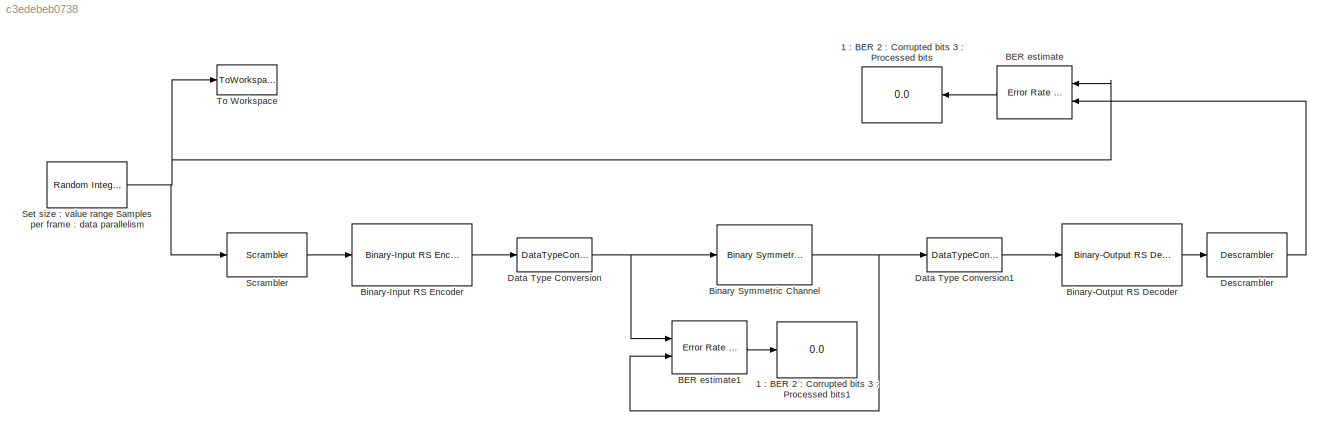
MODEL slx_c3edebeb0738
KIND model
CONFIG AbsTol = auto
CONFIG EnableMultiTasking = off
CONFIG FixedStep = auto
CONFIG MaxStep = auto
CONFIG MinStep = auto
CONFIG RelTol = 1e-3
CONFIG SampleTimeConstraint = Unconstrained
CONFIG Solver = FixedStepAuto
CONFIG SolverName = FixedStepAuto
CONFIG StartTime = 0
CONFIG StopTime = 100e-3
WORKSPACE source: mxarray member
WORKSPACE ITV_I = 12
WORKSPACE ITV_M = 17
WORKSPACE M = 4
WORKSPACE RS_k = 188
WORKSPACE RS_m = 8
WORKSPACE RS_n = 204
WORKSPACE RS_prim_poly = 'X^8+X^4+X^3+X^2+1'
WORKSPACE Rb = 1000
WORKSPACE SCR_init = [1 0 0 1 0 1 0 1 0 0 0 0 ... (15 elements, 1x15)]
WORKSPACE SCR_poly = '1+z^-14+z^-15'
WORKSPACE beta = 0.3
WORKSPACE osf = 16
WORKSPACE span = 12
BLOCK [Display] 1 : BER 2 : Corrupted bits 3 : Processed bits
  Decimation = 1
  Ports = [1]
BLOCK [Display] 1 : BER 2 : Corrupted bits 3 : Processed bits1
  Decimation = 1
  Ports = [1]
BLOCK [Reference] BER estimate  REF=commsink2/Error Rate
Calculation
  Ports = [2, 1]
  SourceBlock = commsink2/Error Rate\nCalculation
  SourceProductBaseCode = CM
  SourceProductName = Communications Toolbox
  SourceType = Error Rate Calculation
BLOCK [Reference] BER estimate1  REF=commsink2/Error Rate
Calculation
  Ports = [2, 1]
  SourceBlock = commsink2/Error Rate\nCalculation
  SourceProductBaseCode = CM
  SourceProductName = Communications Toolbox
  SourceType = Error Rate Calculation
BLOCK [Reference] Binary Symmetric Channel  REF=commchan3/Binary Symmetric
Channel
  Ports = [1, 1]
  SourceBlock = commchan3/Binary Symmetric\nChannel
  SourceProductBaseCode = CM
  SourceProductName = Communications Toolbox
  SourceType = Binary Symmetric Channel
BLOCK [Reference] Binary-Input RS Encoder  REF=commblkcod2/Binary-Input
RS Encoder
  Ports = [1, 1]
  SourceBlock = commblkcod2/Binary-Input\nRS Encoder
  SourceProductBaseCode = CM
  SourceProductName = Communications Toolbox
  SourceType = Binary-Input RS Encoder
BLOCK [Reference] Binary-Output RS Decoder  REF=commblkcod2/Binary-Output
RS Decoder
  Ports = [1, 1]
  SourceBlock = commblkcod2/Binary-Output\nRS Decoder
  SourceProductBaseCode = CM
  SourceProductName = Communications Toolbox
  SourceType = Binary-Output RS Decoder
BLOCK [DataTypeConversion] Data Type Conversion
  OutDataTypeStr = double
  RndMeth = Floor
  SaturateOnIntegerOverflow = off
BLOCK [DataTypeConversion] Data Type Conversion1
  OutDataTypeStr = uint8
  RndMeth = Floor
  SaturateOnIntegerOverflow = off
BLOCK [Reference] Descrambler  REF=commsequence2/Descrambler
  Ports = [1, 1]
  SourceBlock = commsequence2/Descrambler
  SourceProductBaseCode = CM
  SourceProductName = Communications Toolbox
  SourceType = Descrambler
BLOCK [Reference] Scrambler  REF=commsequence2/Scrambler
  Ports = [1, 1]
  SourceBlock = commsequence2/Scrambler
  SourceProductBaseCode = CM
  SourceProductName = Communications Toolbox
  SourceType = Scrambler
BLOCK [Reference] Set size : value range Samples per frame : data parallelism  REF=commrandsrc3/Random Integer
Generator
  Ports = [0, 1]
  SourceBlock = commrandsrc3/Random Integer\nGenerator
  SourceProductBaseCode = CM
  SourceProductName = Communications Toolbox
  SourceType = Random Integer Generator
BLOCK [ToWorkspace] To Workspace
  FixptAsFi = on
  MaxDataPoints = inf
  Ports = [1]
  SampleTime = -1
  SaveFormat = Timeseries
  VariableName = InBits
LINE BER estimate1:1 -> 1 : BER 2 : Corrupted bits 3 : Processed bits1:1
LINE BER estimate:1 -> 1 : BER 2 : Corrupted bits 3 : Processed bits:1
NET Binary Symmetric Channel:1 -> BER estimate1:2, Data Type Conversion1:1
LINE Binary-Input RS Encoder:1 -> Data Type Conversion:1
LINE Binary-Output RS Decoder:1 -> Descrambler:1
LINE Data Type Conversion1:1 -> Binary-Output RS Decoder:1
NET Data Type Conversion:1 -> BER estimate1:1, Binary Symmetric Channel:1
LINE Descrambler:1 -> BER estimate:2
LINE Scrambler:1 -> Binary-Input RS Encoder:1
NET Set size : value range Samples per frame : data parallelism:1 -> BER estimate:1, Scrambler:1, To Workspace:1
note: NET lines group one-source signal fan-out (src -> all destinations, sorted); 1:1 wires keep LINE
